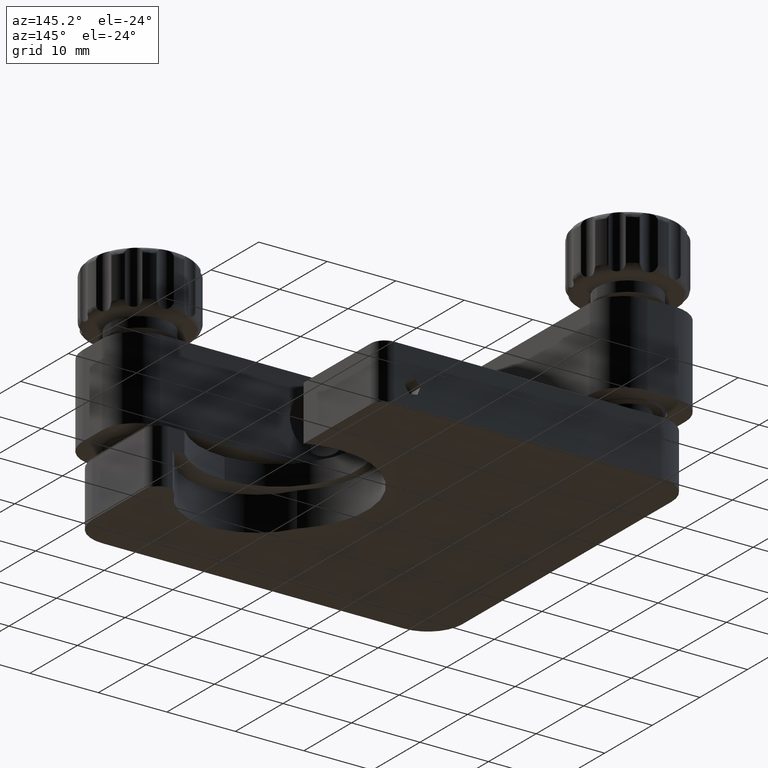
[diagram: clean part render]
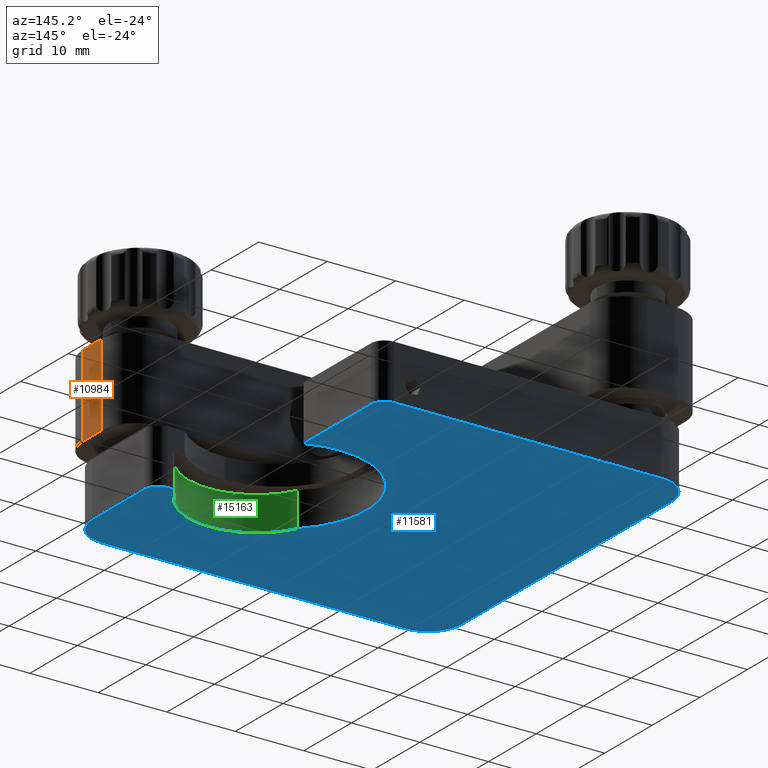
[diagram: same view with three faces highlighted in distinct colors, each labeled with its STEP entity id]
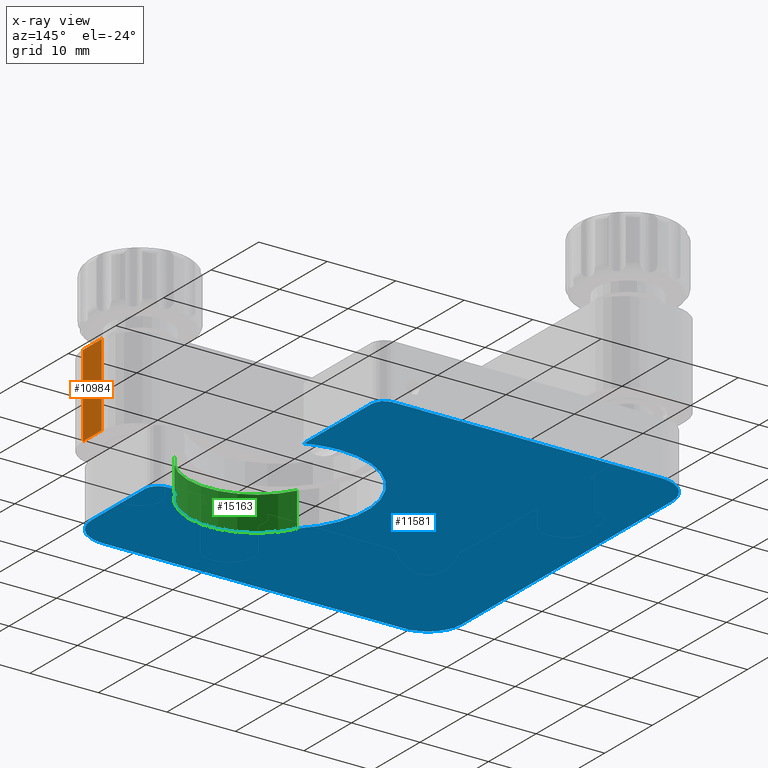
[diagram: x-ray of the same camera — body ghosted, the three highlighted faces saturated]
A machine part, auxiliary view with three faces highlighted in distinct colors.
The next image is the same camera in x-ray (body ghosted, the three faces saturated) — at least one of them is partly hidden behind the body in this view.
Their STEP definitions:

[orange] entity #10984 — the highlighted planar face has unit normal (1, 0, -0).
#691 = EDGE_LOOP ( 'NONE', ( #20457, #19731, #17216, #17713 ) ) ;
#991 = DIRECTION ( 'NONE',  ( -7.396254818132588400E-017, 2.493898841745733900E-017, -1.000000000000000000 ) ) ;
#1560 = VECTOR ( 'NONE', #6784, 1000.000000000000000 ) ;
#1921 = CARTESIAN_POINT ( 'NONE',  ( 27.99999999999991800, -19.00000000000001800, -6.999999999999966200 ) ) ;
#2714 = CARTESIAN_POINT ( 'NONE',  ( 27.99999999999991800, -19.00000000000001800, 4.999999999999960900 ) ) ;
#3286 = VECTOR ( 'NONE', #10596, 1000.000000000000000 ) ;
#3380 = EDGE_CURVE ( 'NONE', #9730, #9988, #9573, .T. ) ;
#3448 = VERTEX_POINT ( 'NONE', #7600 ) ;
#3994 = LINE ( 'NONE', #18696, #8226 ) ;
#4071 = CARTESIAN_POINT ( 'NONE',  ( 27.99999999999992200, -22.99999999999994300, 4.999999999999960900 ) ) ;
#4356 = DIRECTION ( 'NONE',  ( -7.396254818132588400E-017, 2.493898841745733900E-017, -1.000000000000000000 ) ) ;
#4515 = LINE ( 'NONE', #19971, #3286 ) ;
#4553 = LINE ( 'NONE', #1921, #1560 ) ;
#4717 = CARTESIAN_POINT ( 'NONE',  ( 27.99999999999992200, -22.99999999999994300, -6.999999999999966200 ) ) ;
#5023 = EDGE_CURVE ( 'NONE', #3448, #9988, #4553, .T. ) ;
#6199 = EDGE_CURVE ( 'NONE', #13922, #9730, #4515, .T. ) ;
#6784 = DIRECTION ( 'NONE',  ( 6.938893903907218500E-016, -1.000000000000000000, 2.267180765223387400E-017 ) ) ;
#7600 = CARTESIAN_POINT ( 'NONE',  ( 27.99999999999991800, -19.00000000000001800, -6.999999999999966200 ) ) ;
#8226 = VECTOR ( 'NONE', #4356, 1000.000000000000000 ) ;
#9019 = EDGE_CURVE ( 'NONE', #13922, #3448, #3994, .T. ) ;
#9573 = LINE ( 'NONE', #4071, #10083 ) ;
#9730 = VERTEX_POINT ( 'NONE', #12395 ) ;
#9988 = VERTEX_POINT ( 'NONE', #4717 ) ;
#10083 = VECTOR ( 'NONE', #991, 1000.000000000000000 ) ;
#10596 = DIRECTION ( 'NONE',  ( 6.938893903907218500E-016, -1.000000000000000000, 2.267180765223387400E-017 ) ) ;
#10984 = ADVANCED_FACE ( 'NONE', ( #17381 ), #20101, .T. ) ;
#11494 = CARTESIAN_POINT ( 'NONE',  ( 27.99999999999991800, -19.00000000000001800, 4.999999999999960900 ) ) ;
#12395 = CARTESIAN_POINT ( 'NONE',  ( 27.99999999999992200, -22.99999999999994300, 4.999999999999960900 ) ) ;
#12783 = AXIS2_PLACEMENT_3D ( 'NONE', #2714, #15464, #19892 ) ;
#13922 = VERTEX_POINT ( 'NONE', #11494 ) ;
#15464 = DIRECTION ( 'NONE',  ( 1.000000000000000000, 4.024558464266197900E-016, -7.396254818132587200E-017 ) ) ;
#17216 = ORIENTED_EDGE ( 'NONE', *, *, #6199, .T. ) ;
#17381 = FACE_OUTER_BOUND ( 'NONE', #691, .T. ) ;
#17713 = ORIENTED_EDGE ( 'NONE', *, *, #3380, .T. ) ;
#18696 = CARTESIAN_POINT ( 'NONE',  ( 27.99999999999991800, -19.00000000000001800, 4.999999999999960900 ) ) ;
#19731 = ORIENTED_EDGE ( 'NONE', *, *, #9019, .F. ) ;
#19892 = DIRECTION ( 'NONE',  ( -7.396254818132588400E-017, 2.493898841745733900E-017, -1.000000000000000000 ) ) ;
#19971 = CARTESIAN_POINT ( 'NONE',  ( 27.99999999999991800, -19.00000000000001800, 4.999999999999960900 ) ) ;
#20101 = PLANE ( 'NONE',  #12783 ) ;
#20457 = ORIENTED_EDGE ( 'NONE', *, *, #5023, .F. ) ;

[blue] entity #11581 — the highlighted planar face has unit normal (0, 0, 1).
#3 = DIRECTION ( 'NONE',  ( 0.0000000000000000000, -1.000000000000000000, 0.0000000000000000000 ) ) ;
#92 = AXIS2_PLACEMENT_3D ( 'NONE', #10818, #4203, #12473 ) ;
#553 = CIRCLE ( 'NONE', #14035, 1.999999999999994900 ) ;
#882 = DIRECTION ( 'NONE',  ( -1.000000000000000000, -7.113475146824235000E-016, 0.0000000000000000000 ) ) ;
#1300 = CARTESIAN_POINT ( 'NONE',  ( 28.00000000000000000, -10.00000000000000000, -18.00000000000000400 ) ) ;
#1410 = EDGE_CURVE ( 'NONE', #15312, #3035, #8942, .T. ) ;
#2031 = CARTESIAN_POINT ( 'NONE',  ( 27.99999999999999600, -10.00000000000000000, -18.00000000000000400 ) ) ;
#2060 = EDGE_CURVE ( 'NONE', #20332, #15485, #14903, .T. ) ;
#2070 = DIRECTION ( 'NONE',  ( 0.0000000000000000000, 0.0000000000000000000, 1.000000000000000000 ) ) ;
#2139 = CARTESIAN_POINT ( 'NONE',  ( 26.00000000000000400, -10.00000000000000000, -18.00000000000000400 ) ) ;
#2476 = CARTESIAN_POINT ( 'NONE',  ( 18.00000000000000700, 26.00000000000000400, -18.00000000000000400 ) ) ;
#2890 = EDGE_CURVE ( 'NONE', #14243, #3666, #20171, .T. ) ;
#3019 = CIRCLE ( 'NONE', #11943, 10.00000000000000200 ) ;
#3035 = VERTEX_POINT ( 'NONE', #16389 ) ;
#3132 = EDGE_LOOP ( 'NONE', ( #3430, #14976, #20559, #20269, #17334, #6483, #16161, #12220, #10561, #11468, #19865, #14200, #19180, #17070, #12580 ) ) ;
#3168 = FACE_OUTER_BOUND ( 'NONE', #3132, .T. ) ;
#3285 = CIRCLE ( 'NONE', #12669, 4.999999999999997300 ) ;
#3408 = VERTEX_POINT ( 'NONE', #13870 ) ;
#3430 = ORIENTED_EDGE ( 'NONE', *, *, #7523, .F. ) ;
#3606 = CARTESIAN_POINT ( 'NONE',  ( 18.00000000000000700, 28.00000000000000000, -18.00000000000000400 ) ) ;
#3666 = VERTEX_POINT ( 'NONE', #14558 ) ;
#4067 = CARTESIAN_POINT ( 'NONE',  ( 15.30000000000000100, -4.700000000000000200, -18.00000000000000400 ) ) ;
#4203 = DIRECTION ( 'NONE',  ( 0.0000000000000000000, 0.0000000000000000000, -1.000000000000000000 ) ) ;
#4303 = CIRCLE ( 'NONE', #16220, 1.999999999999998200 ) ;
#5028 = DIRECTION ( 'NONE',  ( 0.0000000000000000000, 0.0000000000000000000, 1.000000000000000000 ) ) ;
#5104 = EDGE_CURVE ( 'NONE', #11685, #20332, #16769, .T. ) ;
#5261 = EDGE_CURVE ( 'NONE', #3035, #20365, #553, .T. ) ;
#5342 = DIRECTION ( 'NONE',  ( 0.0000000000000000000, -1.000000000000000000, 0.0000000000000000000 ) ) ;
#5467 = DIRECTION ( 'NONE',  ( 0.0000000000000000000, 0.0000000000000000000, 1.000000000000000000 ) ) ;
#5475 = CARTESIAN_POINT ( 'NONE',  ( 18.00000000000000700, 26.00000000000000400, -18.00000000000000400 ) ) ;
#5874 = CARTESIAN_POINT ( 'NONE',  ( 20.00000000000000000, 26.00000000000000400, -18.00000000000000400 ) ) ;
#6187 = VERTEX_POINT ( 'NONE', #10527 ) ;
#6370 = CARTESIAN_POINT ( 'NONE',  ( 26.00000000000000400, -7.999999999999998200, -18.00000000000000400 ) ) ;
#6380 = AXIS2_PLACEMENT_3D ( 'NONE', #2476, #5467, #11731 ) ;
#6483 = ORIENTED_EDGE ( 'NONE', *, *, #16933, .F. ) ;
#6895 = CARTESIAN_POINT ( 'NONE',  ( 15.30000000000000100, 0.0000000000000000000, -18.00000000000000400 ) ) ;
#7075 = DIRECTION ( 'NONE',  ( 0.0000000000000000000, 0.0000000000000000000, 1.000000000000000000 ) ) ;
#7277 = CARTESIAN_POINT ( 'NONE',  ( 23.00000000000000700, -25.99999999999999600, -18.00000000000000400 ) ) ;
#7299 = EDGE_CURVE ( 'NONE', #3666, #11685, #16455, .T. ) ;
#7523 = EDGE_CURVE ( 'NONE', #17727, #3408, #3019, .T. ) ;
#7954 = VECTOR ( 'NONE', #15647, 1000.000000000000000 ) ;
#8240 = DIRECTION ( 'NONE',  ( 0.0000000000000000000, -1.000000000000000000, 0.0000000000000000000 ) ) ;
#8426 = VECTOR ( 'NONE', #19547, 1000.000000000000000 ) ;
#8518 = DIRECTION ( 'NONE',  ( 0.0000000000000000000, 1.000000000000000000, 0.0000000000000000000 ) ) ;
#8593 = EDGE_CURVE ( 'NONE', #13222, #15005, #4303, .T. ) ;
#8670 = PLANE ( 'NONE',  #6380 ) ;
#8750 = DIRECTION ( 'NONE',  ( 0.0000000000000000000, 0.0000000000000000000, 1.000000000000000000 ) ) ;
#8938 = DIRECTION ( 'NONE',  ( 0.0000000000000000000, 0.0000000000000000000, -1.000000000000000000 ) ) ;
#8942 = LINE ( 'NONE', #5874, #19884 ) ;
#9319 = AXIS2_PLACEMENT_3D ( 'NONE', #6895, #16518, #8518 ) ;
#9350 = AXIS2_PLACEMENT_3D ( 'NONE', #19291, #11350, #3 ) ;
#9475 = AXIS2_PLACEMENT_3D ( 'NONE', #14808, #19803, #18278 ) ;
#9504 = EDGE_CURVE ( 'NONE', #11828, #15312, #9940, .T. ) ;
#9832 = DIRECTION ( 'NONE',  ( 3.942553354492744000E-016, -1.000000000000000000, 0.0000000000000000000 ) ) ;
#9842 = LINE ( 'NONE', #2031, #14075 ) ;
#9933 = DIRECTION ( 'NONE',  ( 0.0000000000000000000, -1.000000000000000000, 0.0000000000000000000 ) ) ;
#9940 = CIRCLE ( 'NONE', #9319, 12.80000000000000100 ) ;
#10091 = CARTESIAN_POINT ( 'NONE',  ( -21.00000000000000000, 28.00000000000000000, -18.00000000000000400 ) ) ;
#10527 = CARTESIAN_POINT ( 'NONE',  ( 28.00000000000000400, -20.99999999999999600, -18.00000000000000400 ) ) ;
#10561 = ORIENTED_EDGE ( 'NONE', *, *, #7299, .F. ) ;
#10818 = CARTESIAN_POINT ( 'NONE',  ( 15.30000000000000100, 0.0000000000000000000, -18.00000000000000400 ) ) ;
#10901 = EDGE_CURVE ( 'NONE', #20365, #14243, #12656, .T. ) ;
#11350 = DIRECTION ( 'NONE',  ( 0.0000000000000000000, 0.0000000000000000000, 1.000000000000000000 ) ) ;
#11468 = ORIENTED_EDGE ( 'NONE', *, *, #2890, .F. ) ;
#11581 = ADVANCED_FACE ( 'NONE', ( #3168 ), #8670, .F. ) ;
#11601 = CARTESIAN_POINT ( 'NONE',  ( -20.99999999999998900, -20.99999999999999600, -18.00000000000000400 ) ) ;
#11685 = VERTEX_POINT ( 'NONE', #19553 ) ;
#11731 = DIRECTION ( 'NONE',  ( 0.0000000000000000000, -1.000000000000000000, 0.0000000000000000000 ) ) ;
#11766 = CARTESIAN_POINT ( 'NONE',  ( 15.30000000000000100, 12.80000000000000100, -18.00000000000000400 ) ) ;
#11828 = VERTEX_POINT ( 'NONE', #11766 ) ;
#11943 = AXIS2_PLACEMENT_3D ( 'NONE', #4067, #8938, #18389 ) ;
#12081 = VECTOR ( 'NONE', #882, 1000.000000000000000 ) ;
#12151 = VERTEX_POINT ( 'NONE', #18985 ) ;
#12220 = ORIENTED_EDGE ( 'NONE', *, *, #5104, .F. ) ;
#12267 = CARTESIAN_POINT ( 'NONE',  ( -21.00000000000000000, 28.00000000000000400, -18.00000000000000400 ) ) ;
#12436 = CARTESIAN_POINT ( 'NONE',  ( -20.99999999999998900, -26.00000000000000000, -18.00000000000000400 ) ) ;
#12473 = DIRECTION ( 'NONE',  ( 0.0000000000000000000, 1.000000000000000000, 0.0000000000000000000 ) ) ;
#12580 = ORIENTED_EDGE ( 'NONE', *, *, #19098, .F. ) ;
#12656 = LINE ( 'NONE', #10091, #8426 ) ;
#12669 = AXIS2_PLACEMENT_3D ( 'NONE', #16450, #5028, #8240 ) ;
#12771 = CIRCLE ( 'NONE', #9475, 12.80000000000000100 ) ;
#12892 = CARTESIAN_POINT ( 'NONE',  ( -26.00000000000000700, 23.00000000000000000, -18.00000000000000400 ) ) ;
#12925 = CARTESIAN_POINT ( 'NONE',  ( -20.99999999999998900, -26.00000000000000000, -18.00000000000000400 ) ) ;
#13161 = DIRECTION ( 'NONE',  ( -6.308085367188391200E-016, 1.000000000000000000, 0.0000000000000000000 ) ) ;
#13222 = VERTEX_POINT ( 'NONE', #1300 ) ;
#13418 = CARTESIAN_POINT ( 'NONE',  ( 23.56135582092915500, -8.000000000000000000, -18.00000000000000400 ) ) ;
#13457 = CARTESIAN_POINT ( 'NONE',  ( 24.25952968910126400, -9.141489361702122500, -18.00000000000000400 ) ) ;
#13870 = CARTESIAN_POINT ( 'NONE',  ( 6.340470310898744800, -9.141489361702127800, -18.00000000000000400 ) ) ;
#13926 = EDGE_CURVE ( 'NONE', #6187, #13222, #9842, .T. ) ;
#14035 = AXIS2_PLACEMENT_3D ( 'NONE', #5475, #8750, #5342 ) ;
#14075 = VECTOR ( 'NONE', #13161, 1000.000000000000000 ) ;
#14200 = ORIENTED_EDGE ( 'NONE', *, *, #5261, .F. ) ;
#14243 = VERTEX_POINT ( 'NONE', #12267 ) ;
#14313 = AXIS2_PLACEMENT_3D ( 'NONE', #11601, #2070, #9933 ) ;
#14558 = CARTESIAN_POINT ( 'NONE',  ( -26.00000000000000700, 23.00000000000000000, -18.00000000000000400 ) ) ;
#14635 = EDGE_CURVE ( 'NONE', #15005, #12151, #16312, .T. ) ;
#14808 = CARTESIAN_POINT ( 'NONE',  ( 15.30000000000000100, 0.0000000000000000000, -18.00000000000000400 ) ) ;
#14903 = LINE ( 'NONE', #12436, #7954 ) ;
#14976 = ORIENTED_EDGE ( 'NONE', *, *, #16476, .T. ) ;
#15005 = VERTEX_POINT ( 'NONE', #6370 ) ;
#15090 = CARTESIAN_POINT ( 'NONE',  ( 19.99999999999999600, 11.90588089979066000, -18.00000000000000400 ) ) ;
#15176 = DIRECTION ( 'NONE',  ( 0.0000000000000000000, -1.000000000000000000, 0.0000000000000000000 ) ) ;
#15312 = VERTEX_POINT ( 'NONE', #15090 ) ;
#15485 = VERTEX_POINT ( 'NONE', #7277 ) ;
#15647 = DIRECTION ( 'NONE',  ( 1.000000000000000000, 0.0000000000000000000, 0.0000000000000000000 ) ) ;
#16161 = ORIENTED_EDGE ( 'NONE', *, *, #2060, .F. ) ;
#16220 = AXIS2_PLACEMENT_3D ( 'NONE', #2139, #7075, #15176 ) ;
#16312 = LINE ( 'NONE', #13418, #12081 ) ;
#16389 = CARTESIAN_POINT ( 'NONE',  ( 20.00000000000000000, 26.00000000000000400, -18.00000000000000400 ) ) ;
#16450 = CARTESIAN_POINT ( 'NONE',  ( 23.00000000000000700, -20.99999999999999600, -18.00000000000000400 ) ) ;
#16455 = LINE ( 'NONE', #12892, #19681 ) ;
#16476 = EDGE_CURVE ( 'NONE', #17727, #12151, #12771, .T. ) ;
#16518 = DIRECTION ( 'NONE',  ( 0.0000000000000000000, 0.0000000000000000000, -1.000000000000000000 ) ) ;
#16769 = CIRCLE ( 'NONE', #14313, 4.999999999999997300 ) ;
#16933 = EDGE_CURVE ( 'NONE', #15485, #6187, #3285, .T. ) ;
#17070 = ORIENTED_EDGE ( 'NONE', *, *, #9504, .F. ) ;
#17334 = ORIENTED_EDGE ( 'NONE', *, *, #13926, .F. ) ;
#17727 = VERTEX_POINT ( 'NONE', #13457 ) ;
#18278 = DIRECTION ( 'NONE',  ( 0.0000000000000000000, -1.000000000000000000, 0.0000000000000000000 ) ) ;
#18389 = DIRECTION ( 'NONE',  ( 0.0000000000000000000, -1.000000000000000000, 0.0000000000000000000 ) ) ;
#18985 = CARTESIAN_POINT ( 'NONE',  ( 25.29199679743743800, -7.999999999999998200, -18.00000000000000400 ) ) ;
#19098 = EDGE_CURVE ( 'NONE', #3408, #11828, #20170, .T. ) ;
#19180 = ORIENTED_EDGE ( 'NONE', *, *, #1410, .F. ) ;
#19291 = CARTESIAN_POINT ( 'NONE',  ( -21.00000000000000000, 23.00000000000000000, -18.00000000000000400 ) ) ;
#19547 = DIRECTION ( 'NONE',  ( -1.000000000000000000, 0.0000000000000000000, 0.0000000000000000000 ) ) ;
#19553 = CARTESIAN_POINT ( 'NONE',  ( -25.99999999999998900, -20.99999999999999600, -18.00000000000000400 ) ) ;
#19681 = VECTOR ( 'NONE', #9832, 1000.000000000000000 ) ;
#19803 = DIRECTION ( 'NONE',  ( 0.0000000000000000000, 0.0000000000000000000, 1.000000000000000000 ) ) ;
#19865 = ORIENTED_EDGE ( 'NONE', *, *, #10901, .F. ) ;
#19884 = VECTOR ( 'NONE', #20130, 1000.000000000000000 ) ;
#20130 = DIRECTION ( 'NONE',  ( 0.0000000000000000000, 1.000000000000000000, 0.0000000000000000000 ) ) ;
#20170 = CIRCLE ( 'NONE', #92, 12.80000000000000100 ) ;
#20171 = CIRCLE ( 'NONE', #9350, 5.000000000000004400 ) ;
#20269 = ORIENTED_EDGE ( 'NONE', *, *, #8593, .F. ) ;
#20332 = VERTEX_POINT ( 'NONE', #12925 ) ;
#20365 = VERTEX_POINT ( 'NONE', #3606 ) ;
#20559 = ORIENTED_EDGE ( 'NONE', *, *, #14635, .F. ) ;

[green] entity #15163 — the highlighted cylindrical surface (partial cylindrical patch) has radius 10 mm, axis along (0, 0, -1).
#225 = LINE ( 'NONE', #18919, #13182 ) ;
#431 = CARTESIAN_POINT ( 'NONE',  ( 15.30000000000000100, -4.700000000000000200, -13.00000000000000200 ) ) ;
#839 = CYLINDRICAL_SURFACE ( 'NONE', #20280, 10.00000000000000000 ) ;
#1016 = CARTESIAN_POINT ( 'NONE',  ( 24.25952968910126400, -9.141489361702122500, -13.00000000000000200 ) ) ;
#1100 = VERTEX_POINT ( 'NONE', #1016 ) ;
#1149 = ORIENTED_EDGE ( 'NONE', *, *, #7152, .F. ) ;
#1580 = DIRECTION ( 'NONE',  ( 0.0000000000000000000, 0.0000000000000000000, -1.000000000000000000 ) ) ;
#1617 = CARTESIAN_POINT ( 'NONE',  ( 24.25952968910126400, -9.141489361702122500, -13.00000000000000200 ) ) ;
#3019 = CIRCLE ( 'NONE', #11943, 10.00000000000000200 ) ;
#3222 = DIRECTION ( 'NONE',  ( 0.0000000000000000000, 0.0000000000000000000, -1.000000000000000000 ) ) ;
#3408 = VERTEX_POINT ( 'NONE', #13870 ) ;
#4067 = CARTESIAN_POINT ( 'NONE',  ( 15.30000000000000100, -4.700000000000000200, -18.00000000000000400 ) ) ;
#5258 = ORIENTED_EDGE ( 'NONE', *, *, #16862, .T. ) ;
#6085 = DIRECTION ( 'NONE',  ( 0.0000000000000000000, 0.0000000000000000000, -1.000000000000000000 ) ) ;
#6573 = DIRECTION ( 'NONE',  ( 0.0000000000000000000, 1.000000000000000000, 0.0000000000000000000 ) ) ;
#7018 = LINE ( 'NONE', #1617, #13250 ) ;
#7152 = EDGE_CURVE ( 'NONE', #1100, #10826, #15265, .T. ) ;
#7523 = EDGE_CURVE ( 'NONE', #17727, #3408, #3019, .T. ) ;
#7758 = CARTESIAN_POINT ( 'NONE',  ( 15.30000000000000100, -4.700000000000000200, -13.00000000000000200 ) ) ;
#8070 = EDGE_CURVE ( 'NONE', #10826, #3408, #225, .T. ) ;
#8938 = DIRECTION ( 'NONE',  ( 0.0000000000000000000, 0.0000000000000000000, -1.000000000000000000 ) ) ;
#10826 = VERTEX_POINT ( 'NONE', #19613 ) ;
#10899 = DIRECTION ( 'NONE',  ( 0.0000000000000000000, -1.000000000000000000, 0.0000000000000000000 ) ) ;
#11943 = AXIS2_PLACEMENT_3D ( 'NONE', #4067, #8938, #18389 ) ;
#12041 = ORIENTED_EDGE ( 'NONE', *, *, #7523, .T. ) ;
#13182 = VECTOR ( 'NONE', #1580, 1000.000000000000000 ) ;
#13250 = VECTOR ( 'NONE', #3222, 1000.000000000000000 ) ;
#13457 = CARTESIAN_POINT ( 'NONE',  ( 24.25952968910126400, -9.141489361702122500, -18.00000000000000400 ) ) ;
#13870 = CARTESIAN_POINT ( 'NONE',  ( 6.340470310898744800, -9.141489361702127800, -18.00000000000000400 ) ) ;
#14494 = ORIENTED_EDGE ( 'NONE', *, *, #8070, .F. ) ;
#15163 = ADVANCED_FACE ( 'NONE', ( #16792 ), #839, .F. ) ;
#15265 = CIRCLE ( 'NONE', #20218, 10.00000000000000200 ) ;
#16125 = DIRECTION ( 'NONE',  ( 0.0000000000000000000, 0.0000000000000000000, -1.000000000000000000 ) ) ;
#16792 = FACE_OUTER_BOUND ( 'NONE', #17322, .T. ) ;
#16862 = EDGE_CURVE ( 'NONE', #1100, #17727, #7018, .T. ) ;
#17322 = EDGE_LOOP ( 'NONE', ( #12041, #14494, #1149, #5258 ) ) ;
#17727 = VERTEX_POINT ( 'NONE', #13457 ) ;
#18389 = DIRECTION ( 'NONE',  ( 0.0000000000000000000, -1.000000000000000000, 0.0000000000000000000 ) ) ;
#18919 = CARTESIAN_POINT ( 'NONE',  ( 6.340470310898744800, -9.141489361702127800, -13.00000000000000200 ) ) ;
#19613 = CARTESIAN_POINT ( 'NONE',  ( 6.340470310898744800, -9.141489361702127800, -13.00000000000000200 ) ) ;
#20218 = AXIS2_PLACEMENT_3D ( 'NONE', #7758, #6085, #10899 ) ;
#20280 = AXIS2_PLACEMENT_3D ( 'NONE', #431, #16125, #6573 ) ;